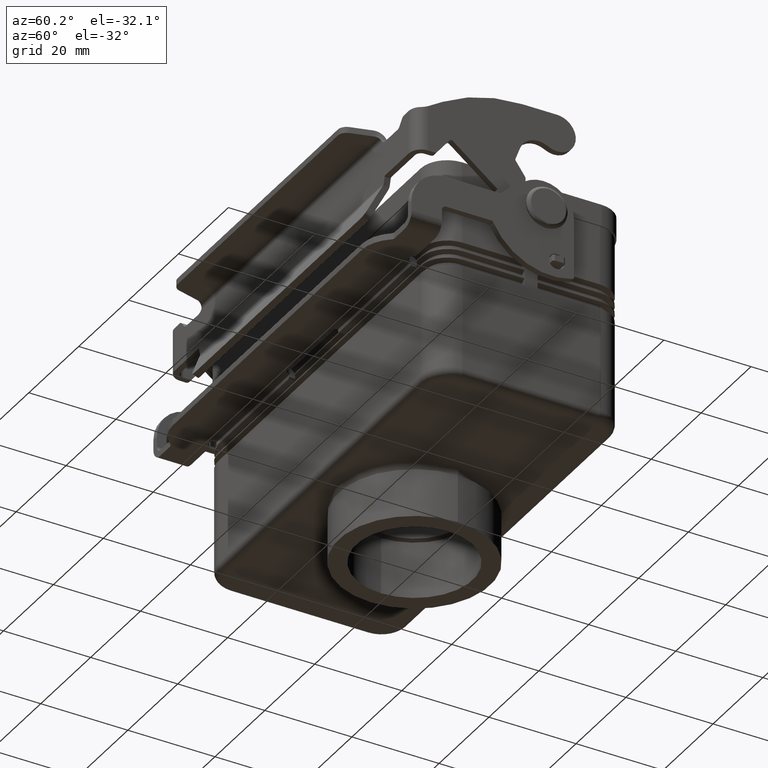
[diagram: clean part render]
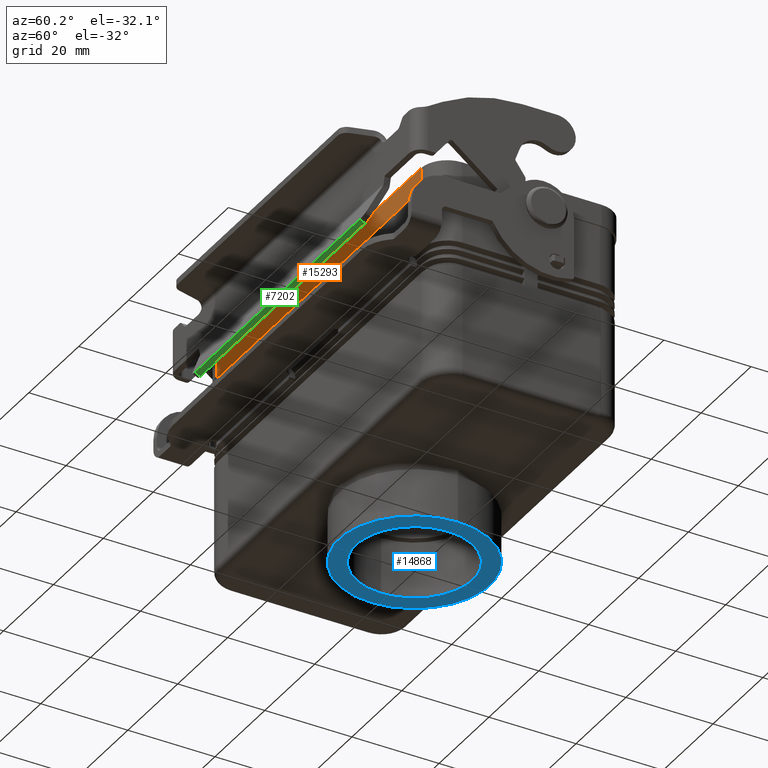
[diagram: same view with three faces highlighted in distinct colors, each labeled with its STEP entity id]
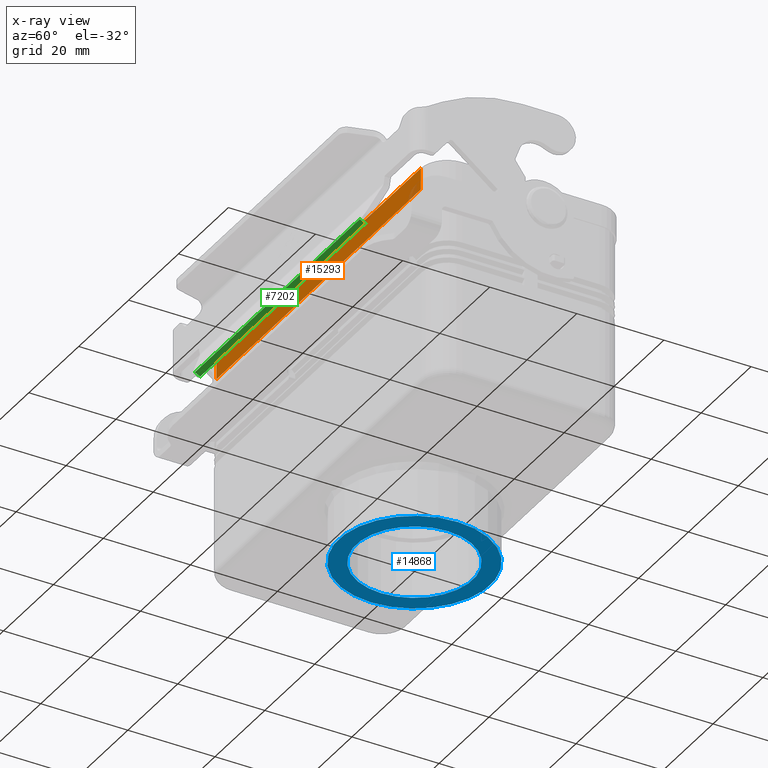
[diagram: x-ray of the same camera — body ghosted, the three highlighted faces saturated]
A machine part, auxiliary view with three faces highlighted in distinct colors.
The next image is the same camera in x-ray (body ghosted, the three faces saturated) — at least one of them is partly hidden behind the body in this view.
Their STEP definitions:

[orange] entity #15293 — the highlighted planar face has unit normal (0, -1, 0).
#14874=CARTESIAN_POINT('',(-41.0,-22.0,4.000000000000004));
#14875=VERTEX_POINT('',#14874);
#14876=CARTESIAN_POINT('',(41.0,-22.0,4.000000000000004));
#14877=VERTEX_POINT('',#14876);
#14878=CARTESIAN_POINT('',(-41.0,-22.0,4.000000000000004));
#14879=DIRECTION('',(1.0,0.0,0.0));
#14880=VECTOR('',#14879,82.0);
#14881=LINE('',#14878,#14880);
#14882=EDGE_CURVE('',#14875,#14877,#14881,.T.);
#15263=CARTESIAN_POINT('',(-41.0,-22.0,9.0));
#15264=DIRECTION('',(0.0,-1.0,0.0));
#15265=DIRECTION('',(0.0,0.0,-1.0));
#15266=AXIS2_PLACEMENT_3D('',#15263,#15264,#15265);
#15267=PLANE('',#15266);
#15268=ORIENTED_EDGE('',*,*,#14882,.T.);
#15269=CARTESIAN_POINT('',(41.0,-22.0,9.0));
#15270=VERTEX_POINT('',#15269);
#15271=CARTESIAN_POINT('',(41.0,-22.0,9.0));
#15272=DIRECTION('',(0.0,0.0,-1.0));
#15273=VECTOR('',#15272,4.999999999999996);
#15274=LINE('',#15271,#15273);
#15275=EDGE_CURVE('',#15270,#14877,#15274,.T.);
#15276=ORIENTED_EDGE('',*,*,#15275,.F.);
#15277=CARTESIAN_POINT('',(-41.0,-22.0,9.0));
#15278=VERTEX_POINT('',#15277);
#15279=CARTESIAN_POINT('',(41.0,-22.0,9.0));
#15280=DIRECTION('',(-1.0,0.0,0.0));
#15281=VECTOR('',#15280,82.0);
#15282=LINE('',#15279,#15281);
#15283=EDGE_CURVE('',#15270,#15278,#15282,.T.);
#15284=ORIENTED_EDGE('',*,*,#15283,.T.);
#15285=CARTESIAN_POINT('',(-41.0,-22.0,9.0));
#15286=DIRECTION('',(0.0,0.0,-1.0));
#15287=VECTOR('',#15286,4.999999999999996);
#15288=LINE('',#15285,#15287);
#15289=EDGE_CURVE('',#15278,#14875,#15288,.T.);
#15290=ORIENTED_EDGE('',*,*,#15289,.T.);
#15291=EDGE_LOOP('',(#15268,#15276,#15284,#15290));
#15292=FACE_OUTER_BOUND('',#15291,.T.);
#15293=ADVANCED_FACE('',(#15292),#15267,.T.);

[blue] entity #14868 — the highlighted planar face has unit normal (0, 0, -1).
#7729=CARTESIAN_POINT('',(13.389999999999995,0.0,-54.500000000000000));
#7730=VERTEX_POINT('',#7729);
#7739=CARTESIAN_POINT('',(-13.390000000000009,1.639748E-015,-54.500000000000000));
#7740=VERTEX_POINT('',#7739);
#7741=CARTESIAN_POINT('',(-6.674105E-015,0.0,-54.500000000000000));
#7742=DIRECTION('',(0.0,0.0,1.0));
#7743=DIRECTION('',(1.0,0.0,0.0));
#7744=AXIS2_PLACEMENT_3D('',#7741,#7742,#7743);
#7745=CIRCLE('',#7744,13.390000000000002);
#7746=EDGE_CURVE('',#7740,#7730,#7745,.T.);
#7813=CARTESIAN_POINT('',(17.390000000000001,0.0,-54.500000000000000));
#7814=VERTEX_POINT('',#7813);
#7823=CARTESIAN_POINT('',(-17.390000000000011,2.129590E-015,-54.500000000000000));
#7824=VERTEX_POINT('',#7823);
#7825=CARTESIAN_POINT('',(-6.674105E-015,0.0,-54.500000000000000));
#7826=DIRECTION('',(0.0,0.0,1.0));
#7827=DIRECTION('',(1.0,0.0,0.0));
#7828=AXIS2_PLACEMENT_3D('',#7825,#7826,#7827);
#7829=CIRCLE('',#7828,17.390000000000004);
#7830=EDGE_CURVE('',#7814,#7824,#7829,.T.);
#14777=CARTESIAN_POINT('',(-6.674105E-015,0.0,-54.500000000000000));
#14778=DIRECTION('',(0.0,0.0,1.0));
#14779=DIRECTION('',(1.0,0.0,0.0));
#14780=AXIS2_PLACEMENT_3D('',#14777,#14778,#14779);
#14781=CIRCLE('',#14780,17.390000000000004);
#14782=EDGE_CURVE('',#7824,#7814,#14781,.T.);
#14845=CARTESIAN_POINT('',(-6.674105E-015,0.0,-54.500000000000000));
#14846=DIRECTION('',(0.0,0.0,1.0));
#14847=DIRECTION('',(1.0,0.0,0.0));
#14848=AXIS2_PLACEMENT_3D('',#14845,#14846,#14847);
#14849=CIRCLE('',#14848,13.390000000000002);
#14850=EDGE_CURVE('',#7730,#7740,#14849,.T.);
#14855=CARTESIAN_POINT('',(15.389999999999997,0.0,-54.500000000000000));
#14856=DIRECTION('',(0.0,0.0,-1.0));
#14857=DIRECTION('',(-1.0,0.0,0.0));
#14858=AXIS2_PLACEMENT_3D('',#14855,#14856,#14857);
#14859=PLANE('',#14858);
#14860=ORIENTED_EDGE('',*,*,#7830,.F.);
#14861=ORIENTED_EDGE('',*,*,#14782,.F.);
#14862=EDGE_LOOP('',(#14860,#14861));
#14863=FACE_OUTER_BOUND('',#14862,.T.);
#14864=ORIENTED_EDGE('',*,*,#14850,.T.);
#14865=ORIENTED_EDGE('',*,*,#7746,.T.);
#14866=EDGE_LOOP('',(#14864,#14865));
#14867=FACE_BOUND('',#14866,.T.);
#14868=ADVANCED_FACE('',(#14863,#14867),#14859,.T.);

[green] entity #7202 — the highlighted face is a freeform B-spline surface patch.
#4145=CARTESIAN_POINT('',(-33.077385050145374,-30.224044373123682,-2.234370138679157));
#4146=VERTEX_POINT('',#4145);
#4154=CARTESIAN_POINT('',(-33.077385050145374,-31.492875274974988,-1.642704572242179));
#4155=VERTEX_POINT('',#4154);
#4156=CARTESIAN_POINT('',(-33.077385050145374,-31.492875274974988,-1.642704572242179));
#4157=DIRECTION('',(0.0,0.906307787036649,-0.422618261740700));
#4158=VECTOR('',#4157,1.399999999999996);
#4159=LINE('',#4156,#4158);
#4160=EDGE_CURVE('',#4155,#4146,#4159,.T.);
#4391=CARTESIAN_POINT('',(33.077385050145367,-31.492875274974974,-1.642704572242169));
#4392=VERTEX_POINT('',#4391);
#4393=CARTESIAN_POINT('',(-33.077385050145374,-31.492875274974988,-1.642704572242179));
#4394=DIRECTION('',(1.0,0.0,0.0));
#4395=VECTOR('',#4394,66.154770100290733);
#4396=LINE('',#4393,#4395);
#4397=EDGE_CURVE('',#4155,#4392,#4396,.T.);
#7166=CARTESIAN_POINT('',(33.077385050145367,-30.224044373123668,-2.234370138679143));
#7167=VERTEX_POINT('',#7166);
#7177=CARTESIAN_POINT('',(33.077385050145367,-31.492875274974974,-1.642704572242169));
#7178=DIRECTION('',(0.0,0.906307787036651,-0.422618261740698));
#7179=VECTOR('',#7178,1.399999999999994);
#7180=LINE('',#7177,#7179);
#7181=EDGE_CURVE('',#4392,#7167,#7180,.T.);
#7186=CARTESIAN_POINT('',(33.077385050145367,-30.224044373123611,-2.234370138679171));
#7187=CARTESIAN_POINT('',(33.077385050145367,-31.492875274975031,-1.642704572242143));
#7188=CARTESIAN_POINT('',(-33.077385050145367,-30.224044373123647,-2.234370138679116));
#7189=CARTESIAN_POINT('',(-33.077385050145367,-31.492875274975070,-1.642704572242088));
#7190=B_SPLINE_SURFACE_WITH_KNOTS('',1,1,((#7186,#7188),(#7187,#7189)),.UNSPECIFIED.,.F.,.F.,.U.,(2,2),(2,2),(0.0,1.400000000000120),(0.0,66.154770100290733),.UNSPECIFIED.);
#7191=CARTESIAN_POINT('',(33.077385050145367,-30.224044373123668,-2.234370138679143));
#7192=DIRECTION('',(-1.0,0.0,0.0));
#7193=VECTOR('',#7192,66.154770100290733);
#7194=LINE('',#7191,#7193);
#7195=EDGE_CURVE('',#7167,#4146,#7194,.T.);
#7196=ORIENTED_EDGE('',*,*,#7195,.F.);
#7197=ORIENTED_EDGE('',*,*,#7181,.F.);
#7198=ORIENTED_EDGE('',*,*,#4397,.F.);
#7199=ORIENTED_EDGE('',*,*,#4160,.T.);
#7200=EDGE_LOOP('',(#7196,#7197,#7198,#7199));
#7201=FACE_OUTER_BOUND('',#7200,.T.);
#7202=ADVANCED_FACE('',(#7201),#7190,.T.);